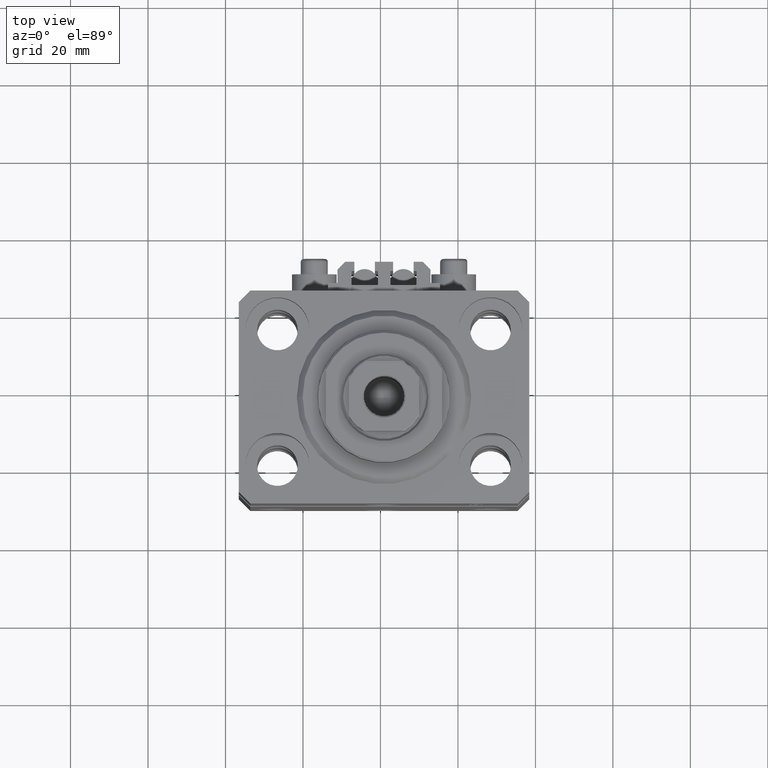
[diagram: clean part render]
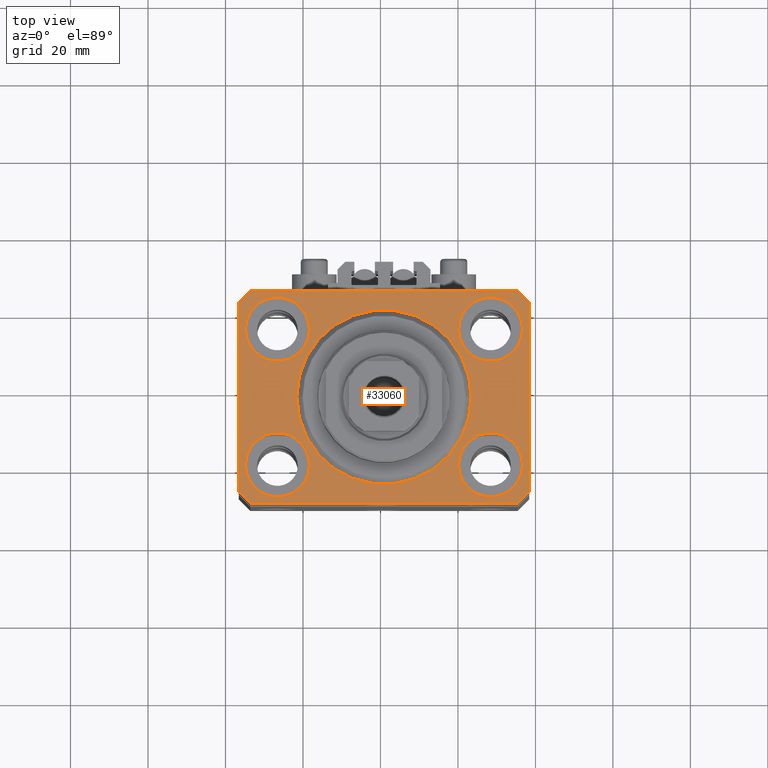
[diagram: same view with one face highlighted and labeled with its STEP entity id]
A machine part, top view. The second image highlights one B-rep face of the part: STEP entity #33060.
In plain terms, the highlighted planar face has unit normal (0, 0, 1).
Its self-contained STEP definition (entity closure, byte-faithful):
#125 = DIRECTION ( 'NONE',  ( 1.000000000000000000, 0.000000000000000000, 0.000000000000000000 ) ) ;
#173 = CARTESIAN_POINT ( 'NONE',  ( -37.49999999999999289, 24.50000000000000000, 0.000000000000000000 ) ) ;
#244 = CARTESIAN_POINT ( 'NONE',  ( 22.50000000000000355, 0.000000000000000000, 0.000000000000000000 ) ) ;
#342 = DIRECTION ( 'NONE',  ( 1.000000000000000000, 0.000000000000000000, 0.000000000000000000 ) ) ;
#868 = EDGE_CURVE ( 'NONE', #1240, #21794, #24241, .T. ) ;
#885 = DIRECTION ( 'NONE',  ( 1.000000000000000000, 0.000000000000000000, 0.000000000000000000 ) ) ;
#1146 = VERTEX_POINT ( 'NONE', #21101 ) ;
#1149 = DIRECTION ( 'NONE',  ( 1.000000000000000000, 0.000000000000000000, 0.000000000000000000 ) ) ;
#1236 = LINE ( 'NONE', #16346, #34841 ) ;
#1240 = VERTEX_POINT ( 'NONE', #27676 ) ;
#1456 = CARTESIAN_POINT ( 'NONE',  ( 34.49999999999999289, -27.49999999999999645, 0.000000000000000000 ) ) ;
#2242 = VERTEX_POINT ( 'NONE', #46270 ) ;
#2269 = CARTESIAN_POINT ( 'NONE',  ( -22.50000000000000355, 2.755455298081545172E-15, 0.000000000000000000 ) ) ;
#2325 = EDGE_CURVE ( 'NONE', #37306, #2415, #44303, .T. ) ;
#2415 = VERTEX_POINT ( 'NONE', #19467 ) ;
#2795 = DIRECTION ( 'NONE',  ( 1.076236605503979380E-14, 1.000000000000000000, 0.000000000000000000 ) ) ;
#3053 = CARTESIAN_POINT ( 'NONE',  ( 35.75000000000000711, -17.50000000000000000, 0.000000000000000000 ) ) ;
#3263 = EDGE_CURVE ( 'NONE', #15156, #36461, #8731, .T. ) ;
#3861 = EDGE_CURVE ( 'NONE', #1146, #12294, #25040, .T. ) ;
#4346 = EDGE_CURVE ( 'NONE', #2415, #10509, #31879, .T. ) ;
#4467 = ORIENTED_EDGE ( 'NONE', *, *, #31570, .F. ) ;
#4475 = CARTESIAN_POINT ( 'NONE',  ( -37.49999999999999289, -24.50000000000000000, 0.000000000000000000 ) ) ;
#4777 = ORIENTED_EDGE ( 'NONE', *, *, #20189, .T. ) ;
#4801 = DIRECTION ( 'NONE',  ( 0.000000000000000000, 0.000000000000000000, 1.000000000000000000 ) ) ;
#4932 = DIRECTION ( 'NONE',  ( 0.000000000000000000, 0.000000000000000000, 1.000000000000000000 ) ) ;
#5441 = CARTESIAN_POINT ( 'NONE',  ( 34.49999999999999289, -27.49999999999999645, 0.000000000000000000 ) ) ;
#5787 = DIRECTION ( 'NONE',  ( 1.000000000000000000, 0.000000000000000000, 0.000000000000000000 ) ) ;
#6101 = VECTOR ( 'NONE', #2795, 1000.000000000000000 ) ;
#6192 = VERTEX_POINT ( 'NONE', #173 ) ;
#6619 = ORIENTED_EDGE ( 'NONE', *, *, #16999, .F. ) ;
#7128 = FACE_BOUND ( 'NONE', #37239, .T. ) ;
#7281 = DIRECTION ( 'NONE',  ( -0.7071067811865356934, 0.7071067811865594521, 0.000000000000000000 ) ) ;
#7303 = CIRCLE ( 'NONE', #36910, 8.250000000000000000 ) ;
#7516 = LINE ( 'NONE', #15558, #41970 ) ;
#8254 = CARTESIAN_POINT ( 'NONE',  ( -35.75000000000000711, 17.50000000000000000, 0.000000000000000000 ) ) ;
#8267 = EDGE_CURVE ( 'NONE', #21794, #1240, #7303, .T. ) ;
#8298 = DIRECTION ( 'NONE',  ( 0.000000000000000000, 0.000000000000000000, 1.000000000000000000 ) ) ;
#8330 = LINE ( 'NONE', #23201, #19123 ) ;
#8379 = CARTESIAN_POINT ( 'NONE',  ( -27.50000000000000355, 17.50000000000000000, 0.000000000000000000 ) ) ;
#8731 = CIRCLE ( 'NONE', #9502, 8.250000000000000000 ) ;
#9013 = DIRECTION ( 'NONE',  ( 1.000000000000000000, 0.000000000000000000, 0.000000000000000000 ) ) ;
#9069 = AXIS2_PLACEMENT_3D ( 'NONE', #23339, #4801, #1149 ) ;
#9245 = VERTEX_POINT ( 'NONE', #26753 ) ;
#9265 = CARTESIAN_POINT ( 'NONE',  ( 35.74999999999999289, 17.50000000000001066, 0.000000000000000000 ) ) ;
#9374 = LINE ( 'NONE', #16680, #32058 ) ;
#9502 = AXIS2_PLACEMENT_3D ( 'NONE', #18026, #41148, #19951 ) ;
#10509 = VERTEX_POINT ( 'NONE', #19921 ) ;
#11291 = VECTOR ( 'NONE', #43182, 1000.000000000000114 ) ;
#11398 = VERTEX_POINT ( 'NONE', #1456 ) ;
#11543 = CARTESIAN_POINT ( 'NONE',  ( 27.49999999999999645, 17.50000000000001066, 0.000000000000000000 ) ) ;
#12219 = DIRECTION ( 'NONE',  ( -0.7071067811865471286, -0.7071067811865479058, 0.000000000000000000 ) ) ;
#12221 = CARTESIAN_POINT ( 'NONE',  ( 0.000000000000000000, 0.000000000000000000, 0.000000000000000000 ) ) ;
#12294 = VERTEX_POINT ( 'NONE', #9265 ) ;
#13033 = EDGE_LOOP ( 'NONE', ( #4467, #43154 ) ) ;
#13524 = EDGE_CURVE ( 'NONE', #19354, #45758, #13616, .T. ) ;
#13581 = EDGE_CURVE ( 'NONE', #11398, #2242, #39304, .T. ) ;
#13616 = CIRCLE ( 'NONE', #37732, 8.250000000000000000 ) ;
#14732 = EDGE_CURVE ( 'NONE', #45758, #19354, #41660, .T. ) ;
#14913 = EDGE_CURVE ( 'NONE', #10509, #6192, #8330, .T. ) ;
#15156 = VERTEX_POINT ( 'NONE', #47247 ) ;
#15558 = CARTESIAN_POINT ( 'NONE',  ( -37.49999999999999289, 24.50000000000000000, 0.000000000000000000 ) ) ;
#16175 = ORIENTED_EDGE ( 'NONE', *, *, #48053, .T. ) ;
#16346 = CARTESIAN_POINT ( 'NONE',  ( -34.49999999999998579, -27.49999999999999645, 0.000000000000000000 ) ) ;
#16595 = DIRECTION ( 'NONE',  ( 0.000000000000000000, 0.000000000000000000, 1.000000000000000000 ) ) ;
#16680 = CARTESIAN_POINT ( 'NONE',  ( -37.49999999999999289, -24.50000000000000000, 0.000000000000000000 ) ) ;
#16936 = AXIS2_PLACEMENT_3D ( 'NONE', #41918, #8298, #9013 ) ;
#16999 = EDGE_CURVE ( 'NONE', #12294, #1146, #19965, .T. ) ;
#17466 = EDGE_LOOP ( 'NONE', ( #33921, #28274, #45020, #16175, #4777, #19596, #34324, #31924 ) ) ;
#17773 = CARTESIAN_POINT ( 'NONE',  ( 37.50000000000051870, 24.49999999999995381, 0.000000000000000000 ) ) ;
#18026 = CARTESIAN_POINT ( 'NONE',  ( -27.50000000000000355, -17.50000000000000000, 0.000000000000000000 ) ) ;
#19123 = VECTOR ( 'NONE', #12219, 1000.000000000000000 ) ;
#19354 = VERTEX_POINT ( 'NONE', #31197 ) ;
#19368 = EDGE_CURVE ( 'NONE', #36461, #15156, #31714, .T. ) ;
#19467 = CARTESIAN_POINT ( 'NONE',  ( 34.50000000000056843, 27.50000000000000000, 0.000000000000000000 ) ) ;
#19596 = ORIENTED_EDGE ( 'NONE', *, *, #13581, .T. ) ;
#19896 = CARTESIAN_POINT ( 'NONE',  ( -27.50000000000000355, 17.50000000000000000, 0.000000000000000000 ) ) ;
#19921 = CARTESIAN_POINT ( 'NONE',  ( -34.49999999999999289, 27.50000000000000000, 0.000000000000000000 ) ) ;
#19951 = DIRECTION ( 'NONE',  ( 1.000000000000000000, 0.000000000000000000, 0.000000000000000000 ) ) ;
#19965 = CIRCLE ( 'NONE', #9069, 8.249999999999992895 ) ;
#20189 = EDGE_CURVE ( 'NONE', #9245, #11398, #1236, .T. ) ;
#20438 = DIRECTION ( 'NONE',  ( 0.000000000000000000, 0.000000000000000000, 1.000000000000000000 ) ) ;
#20743 = CIRCLE ( 'NONE', #36270, 22.50000000000000355 ) ;
#20921 = CARTESIAN_POINT ( 'NONE',  ( 34.50000000000056843, 27.50000000000000000, 0.000000000000000000 ) ) ;
#21101 = CARTESIAN_POINT ( 'NONE',  ( 19.25000000000000000, 17.50000000000001066, 0.000000000000000000 ) ) ;
#21165 = VECTOR ( 'NONE', #7281, 1000.000000000000114 ) ;
#21794 = VERTEX_POINT ( 'NONE', #3053 ) ;
#22011 = FACE_BOUND ( 'NONE', #37966, .T. ) ;
#22081 = DIRECTION ( 'NONE',  ( 0.000000000000000000, 0.000000000000000000, 1.000000000000000000 ) ) ;
#22549 = EDGE_CURVE ( 'NONE', #2242, #37306, #32280, .T. ) ;
#23201 = CARTESIAN_POINT ( 'NONE',  ( -34.49999999999999289, 27.50000000000000000, 0.000000000000000000 ) ) ;
#23339 = CARTESIAN_POINT ( 'NONE',  ( 27.49999999999999645, 17.50000000000001066, 0.000000000000000000 ) ) ;
#24024 = CIRCLE ( 'NONE', #42688, 22.50000000000000355 ) ;
#24170 = CARTESIAN_POINT ( 'NONE',  ( 0.000000000000000000, 0.000000000000000000, 0.000000000000000000 ) ) ;
#24241 = CIRCLE ( 'NONE', #34355, 8.250000000000000000 ) ;
#24610 = ORIENTED_EDGE ( 'NONE', *, *, #13524, .F. ) ;
#24799 = DIRECTION ( 'NONE',  ( -1.000000000000000000, 0.000000000000000000, 0.000000000000000000 ) ) ;
#25040 = CIRCLE ( 'NONE', #31291, 8.249999999999992895 ) ;
#25339 = AXIS2_PLACEMENT_3D ( 'NONE', #19896, #45690, #885 ) ;
#25633 = EDGE_CURVE ( 'NONE', #46170, #37131, #24024, .T. ) ;
#26753 = CARTESIAN_POINT ( 'NONE',  ( -34.49999999999998579, -27.49999999999999645, 0.000000000000000000 ) ) ;
#27127 = EDGE_CURVE ( 'NONE', #6192, #40039, #7516, .T. ) ;
#27599 = CARTESIAN_POINT ( 'NONE',  ( 0.000000000000000000, 0.000000000000000000, 0.000000000000000000 ) ) ;
#27676 = CARTESIAN_POINT ( 'NONE',  ( 19.25000000000000000, -17.50000000000000000, 0.000000000000000000 ) ) ;
#28274 = ORIENTED_EDGE ( 'NONE', *, *, #14913, .T. ) ;
#30696 = CARTESIAN_POINT ( 'NONE',  ( -35.75000000000000711, -17.50000000000000000, 0.000000000000000000 ) ) ;
#30753 = PLANE ( 'NONE',  #43353 ) ;
#31197 = CARTESIAN_POINT ( 'NONE',  ( -19.25000000000000355, 17.50000000000000000, 0.000000000000000000 ) ) ;
#31291 = AXIS2_PLACEMENT_3D ( 'NONE', #11543, #16595, #44910 ) ;
#31493 = DIRECTION ( 'NONE',  ( 1.000000000000000000, 0.000000000000000000, 0.000000000000000000 ) ) ;
#31570 = EDGE_CURVE ( 'NONE', #37131, #46170, #20743, .T. ) ;
#31714 = CIRCLE ( 'NONE', #16936, 8.250000000000000000 ) ;
#31879 = LINE ( 'NONE', #20921, #46863 ) ;
#31924 = ORIENTED_EDGE ( 'NONE', *, *, #2325, .T. ) ;
#32058 = VECTOR ( 'NONE', #38852, 1000.000000000000000 ) ;
#32280 = LINE ( 'NONE', #43471, #6101 ) ;
#32431 = DIRECTION ( 'NONE',  ( 0.000000000000000000, 0.000000000000000000, 1.000000000000000000 ) ) ;
#33060 = ADVANCED_FACE ( 'NONE', ( #44144, #40519, #7128, #22011, #33684, #37818 ), #30753, .T. ) ;
#33516 = CARTESIAN_POINT ( 'NONE',  ( 27.50000000000000355, -17.50000000000000000, 0.000000000000000000 ) ) ;
#33684 = FACE_BOUND ( 'NONE', #13033, .T. ) ;
#33729 = DIRECTION ( 'NONE',  ( 0.000000000000000000, 0.000000000000000000, 1.000000000000000000 ) ) ;
#33921 = ORIENTED_EDGE ( 'NONE', *, *, #4346, .T. ) ;
#34324 = ORIENTED_EDGE ( 'NONE', *, *, #22549, .T. ) ;
#34355 = AXIS2_PLACEMENT_3D ( 'NONE', #36238, #20438, #5787 ) ;
#34841 = VECTOR ( 'NONE', #35103, 1000.000000000000000 ) ;
#35103 = DIRECTION ( 'NONE',  ( 1.000000000000000000, 0.000000000000000000, 0.000000000000000000 ) ) ;
#36238 = CARTESIAN_POINT ( 'NONE',  ( 27.50000000000000355, -17.50000000000000000, 0.000000000000000000 ) ) ;
#36270 = AXIS2_PLACEMENT_3D ( 'NONE', #24170, #32431, #40705 ) ;
#36461 = VERTEX_POINT ( 'NONE', #30696 ) ;
#36590 = ORIENTED_EDGE ( 'NONE', *, *, #3263, .F. ) ;
#36910 = AXIS2_PLACEMENT_3D ( 'NONE', #33516, #22081, #125 ) ;
#37131 = VERTEX_POINT ( 'NONE', #244 ) ;
#37239 = EDGE_LOOP ( 'NONE', ( #6619, #42188 ) ) ;
#37306 = VERTEX_POINT ( 'NONE', #46966 ) ;
#37334 = DIRECTION ( 'NONE',  ( 1.000000000000000000, 0.000000000000000000, -0.000000000000000000 ) ) ;
#37545 = ORIENTED_EDGE ( 'NONE', *, *, #8267, .F. ) ;
#37732 = AXIS2_PLACEMENT_3D ( 'NONE', #8379, #33729, #342 ) ;
#37818 = FACE_OUTER_BOUND ( 'NONE', #17466, .T. ) ;
#37966 = EDGE_LOOP ( 'NONE', ( #24610, #46543 ) ) ;
#38852 = DIRECTION ( 'NONE',  ( 0.7071067811865483499, -0.7071067811865466846, 0.000000000000000000 ) ) ;
#39304 = LINE ( 'NONE', #5441, #11291 ) ;
#40039 = VERTEX_POINT ( 'NONE', #4475 ) ;
#40519 = FACE_BOUND ( 'NONE', #44405, .T. ) ;
#40705 = DIRECTION ( 'NONE',  ( 1.000000000000000000, 0.000000000000000000, 0.000000000000000000 ) ) ;
#41148 = DIRECTION ( 'NONE',  ( 0.000000000000000000, 0.000000000000000000, 1.000000000000000000 ) ) ;
#41660 = CIRCLE ( 'NONE', #25339, 8.250000000000000000 ) ;
#41918 = CARTESIAN_POINT ( 'NONE',  ( -27.50000000000000355, -17.50000000000000000, 0.000000000000000000 ) ) ;
#41970 = VECTOR ( 'NONE', #45974, 1000.000000000000000 ) ;
#42188 = ORIENTED_EDGE ( 'NONE', *, *, #3861, .F. ) ;
#42688 = AXIS2_PLACEMENT_3D ( 'NONE', #27599, #4932, #31493 ) ;
#43154 = ORIENTED_EDGE ( 'NONE', *, *, #25633, .F. ) ;
#43182 = DIRECTION ( 'NONE',  ( 0.7071067811865474617, 0.7071067811865474617, 0.000000000000000000 ) ) ;
#43353 = AXIS2_PLACEMENT_3D ( 'NONE', #12221, #44860, #37334 ) ;
#43471 = CARTESIAN_POINT ( 'NONE',  ( 37.49999999999999289, -24.50000000000000000, 0.000000000000000000 ) ) ;
#44144 = FACE_BOUND ( 'NONE', #45031, .T. ) ;
#44303 = LINE ( 'NONE', #17773, #21165 ) ;
#44405 = EDGE_LOOP ( 'NONE', ( #37545, #44634 ) ) ;
#44634 = ORIENTED_EDGE ( 'NONE', *, *, #868, .F. ) ;
#44794 = ORIENTED_EDGE ( 'NONE', *, *, #19368, .F. ) ;
#44860 = DIRECTION ( 'NONE',  ( 0.000000000000000000, 0.000000000000000000, 1.000000000000000000 ) ) ;
#44910 = DIRECTION ( 'NONE',  ( 1.000000000000000000, 0.000000000000000000, 0.000000000000000000 ) ) ;
#45020 = ORIENTED_EDGE ( 'NONE', *, *, #27127, .T. ) ;
#45031 = EDGE_LOOP ( 'NONE', ( #36590, #44794 ) ) ;
#45690 = DIRECTION ( 'NONE',  ( 0.000000000000000000, 0.000000000000000000, 1.000000000000000000 ) ) ;
#45758 = VERTEX_POINT ( 'NONE', #8254 ) ;
#45974 = DIRECTION ( 'NONE',  ( 0.000000000000000000, -1.000000000000000000, 0.000000000000000000 ) ) ;
#46170 = VERTEX_POINT ( 'NONE', #2269 ) ;
#46270 = CARTESIAN_POINT ( 'NONE',  ( 37.49999999999999289, -24.50000000000000000, 0.000000000000000000 ) ) ;
#46543 = ORIENTED_EDGE ( 'NONE', *, *, #14732, .F. ) ;
#46863 = VECTOR ( 'NONE', #24799, 1000.000000000000000 ) ;
#46966 = CARTESIAN_POINT ( 'NONE',  ( 37.50000000000051870, 24.49999999999995381, 0.000000000000000000 ) ) ;
#47247 = CARTESIAN_POINT ( 'NONE',  ( -19.25000000000000355, -17.50000000000000000, 0.000000000000000000 ) ) ;
#48053 = EDGE_CURVE ( 'NONE', #40039, #9245, #9374, .T. ) ;